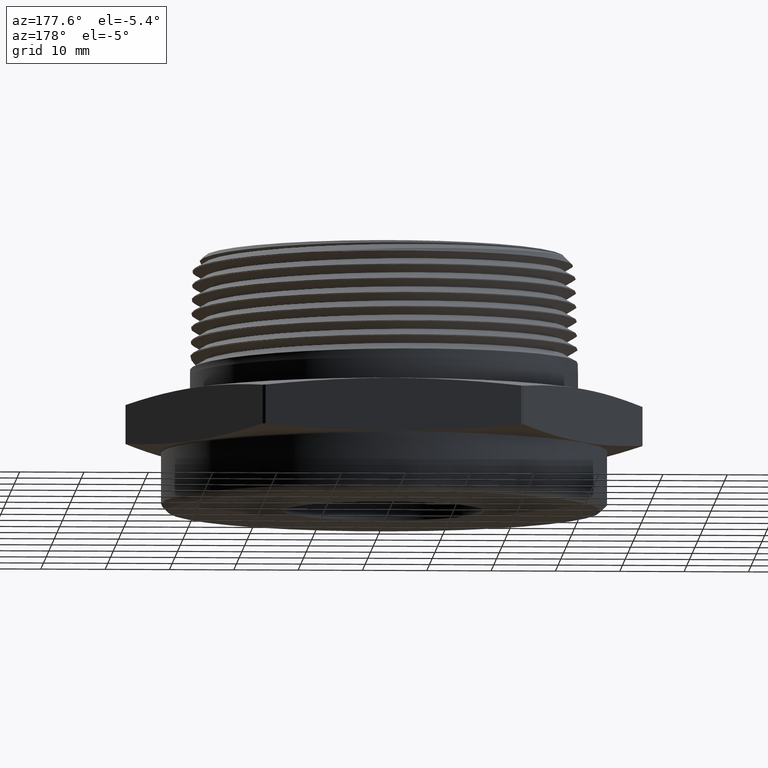
[diagram: clean part render]
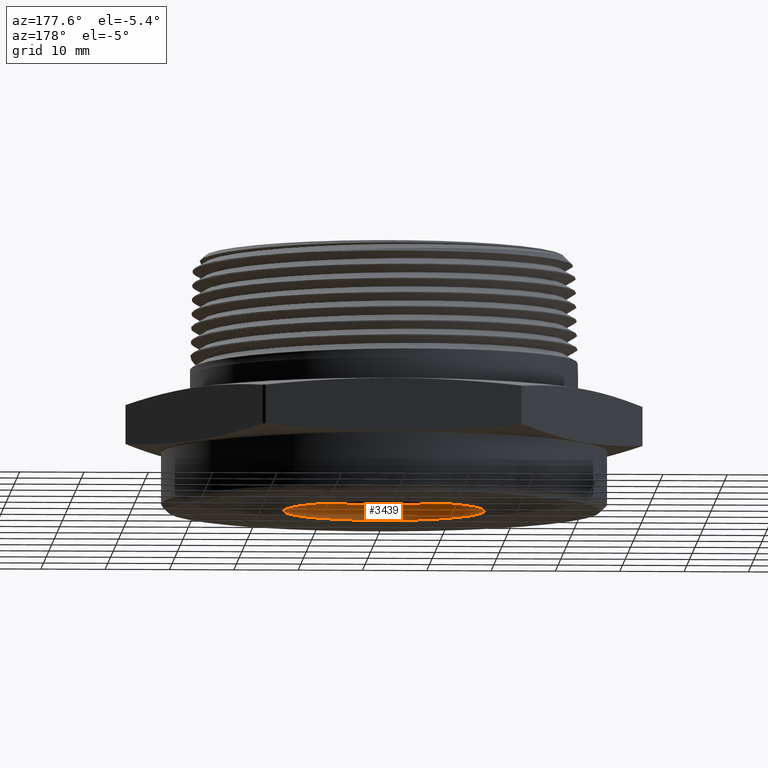
[diagram: same view with one face highlighted and labeled with its STEP entity id]
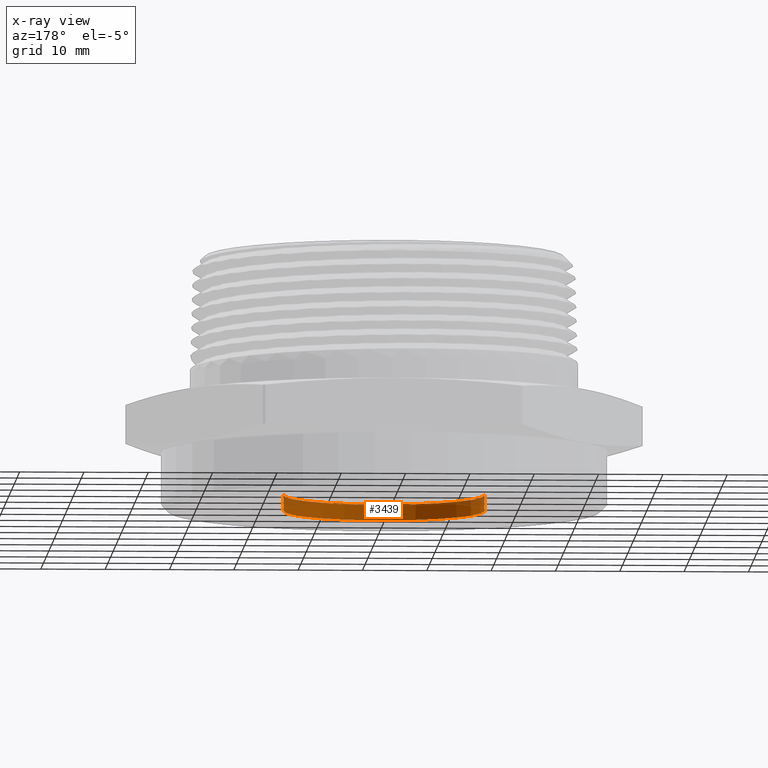
[diagram: x-ray of the same camera — body ghosted, the highlighted face saturated]
A machine part, auxiliary view. The second image highlights one B-rep face of the part: STEP entity #3439.
The next image is the same camera in x-ray: the body ghosted, the highlighted face saturated — about 12% of this face is hidden behind the body in this view.
In plain terms, the highlighted cylindrical surface (partial cylindrical patch) has radius 15.5956 mm, axis along (0, 0, -1).
Its self-contained STEP definition (entity closure, byte-faithful):
#379 = AXIS2_PLACEMENT_3D ( 'NONE', #4019, #4020, #4018 ) ;
#399 = AXIS2_PLACEMENT_3D ( 'NONE', #5389, #5390, #5391 ) ;
#400 = AXIS2_PLACEMENT_3D ( 'NONE', #5395, #5396, #5397 ) ;
#2862 = ORIENTED_EDGE ( 'NONE', *, *, #4842, .F. ) ;
#2863 = ORIENTED_EDGE ( 'NONE', *, *, #4845, .F. ) ;
#2865 = ORIENTED_EDGE ( 'NONE', *, *, #4843, .T. ) ;
#2866 = ORIENTED_EDGE ( 'NONE', *, *, #4844, .T. ) ;
#3017 = FACE_OUTER_BOUND ( 'NONE', #3333, .T. ) ;
#3018 = CYLINDRICAL_SURFACE ( 'NONE', #379, 0.6139999999999998800 ) ;
#3209 = VERTEX_POINT ( 'NONE', #7999 ) ;
#3210 = VERTEX_POINT ( 'NONE', #8003 ) ;
#3213 = VERTEX_POINT ( 'NONE', #8007 ) ;
#3216 = VERTEX_POINT ( 'NONE', #8009 ) ;
#3333 = EDGE_LOOP ( 'NONE', ( #2862, #2865, #2866, #2863 ) ) ;
#3439 = ADVANCED_FACE ( 'NONE', ( #3017 ), #3018, .F. ) ;
#4018 = DIRECTION ( 'NONE',  ( -1.000000000000000000, 0.0000000000000000000, 0.0000000000000000000 ) ) ;
#4019 = CARTESIAN_POINT ( 'NONE',  ( 1.592040838891558700E-017, 0.0000000000000000000, -0.3599999999999999900 ) ) ;
#4020 = DIRECTION ( 'NONE',  ( 1.194951895306585200E-017, -0.0000000000000000000, -1.000000000000000000 ) ) ;
#4842 = EDGE_CURVE ( 'NONE', #3213, #3216, #7122, .T. ) ;
#4843 = EDGE_CURVE ( 'NONE', #3213, #3210, #7124, .T. ) ;
#4844 = EDGE_CURVE ( 'NONE', #3210, #3209, #7112, .T. ) ;
#4845 = EDGE_CURVE ( 'NONE', #3216, #3209, #7127, .T. ) ;
#5379 = CARTESIAN_POINT ( 'NONE',  ( 0.6139999999999998800, 7.519331346764748100E-017, -0.3599999999999999900 ) ) ;
#5380 = DIRECTION ( 'NONE',  ( 1.194951895306585400E-017, -0.0000000000000000000, -1.000000000000000000 ) ) ;
#5388 = DIRECTION ( 'NONE',  ( 1.194951895306585400E-017, -0.0000000000000000000, -1.000000000000000000 ) ) ;
#5389 = CARTESIAN_POINT ( 'NONE',  ( 1.477325456942126600E-017, 0.0000000000000000000, -0.2640000000000000100 ) ) ;
#5390 = DIRECTION ( 'NONE',  ( 1.194951895306585200E-017, -0.0000000000000000000, -1.000000000000000000 ) ) ;
#5391 = DIRECTION ( 'NONE',  ( -1.000000000000000000, 0.0000000000000000000, 0.0000000000000000000 ) ) ;
#5392 = CARTESIAN_POINT ( 'NONE',  ( -0.6139999999999998800, 0.0000000000000000000, -0.3599999999999999900 ) ) ;
#5395 = CARTESIAN_POINT ( 'NONE',  ( 1.592040838891558700E-017, 0.0000000000000000000, -0.3599999999999999900 ) ) ;
#5396 = DIRECTION ( 'NONE',  ( 1.194951895306585200E-017, -0.0000000000000000000, -1.000000000000000000 ) ) ;
#5397 = DIRECTION ( 'NONE',  ( -1.000000000000000000, 0.0000000000000000000, 0.0000000000000000000 ) ) ;
#7112 = CIRCLE ( 'NONE', #400, 0.6140000000000001000 ) ;
#7122 = CIRCLE ( 'NONE', #399, 0.6139999999999997700 ) ;
#7124 = LINE ( 'NONE', #5379, #7126 ) ;
#7126 = VECTOR ( 'NONE', #5380, 39.37007874015748100 ) ;
#7127 = LINE ( 'NONE', #5392, #7129 ) ;
#7129 = VECTOR ( 'NONE', #5388, 39.37007874015748100 ) ;
#7999 = CARTESIAN_POINT ( 'NONE',  ( -0.6140000000000001000, 0.0000000000000000000, -0.3599999999999999900 ) ) ;
#8003 = CARTESIAN_POINT ( 'NONE',  ( 0.6140000000000001000, 7.519331346764749300E-017, -0.3599999999999999900 ) ) ;
#8007 = CARTESIAN_POINT ( 'NONE',  ( 0.6139999999999997700, 7.519331346764746800E-017, -0.2640000000000000100 ) ) ;
#8009 = CARTESIAN_POINT ( 'NONE',  ( -0.6139999999999997700, 0.0000000000000000000, -0.2640000000000000100 ) ) ;